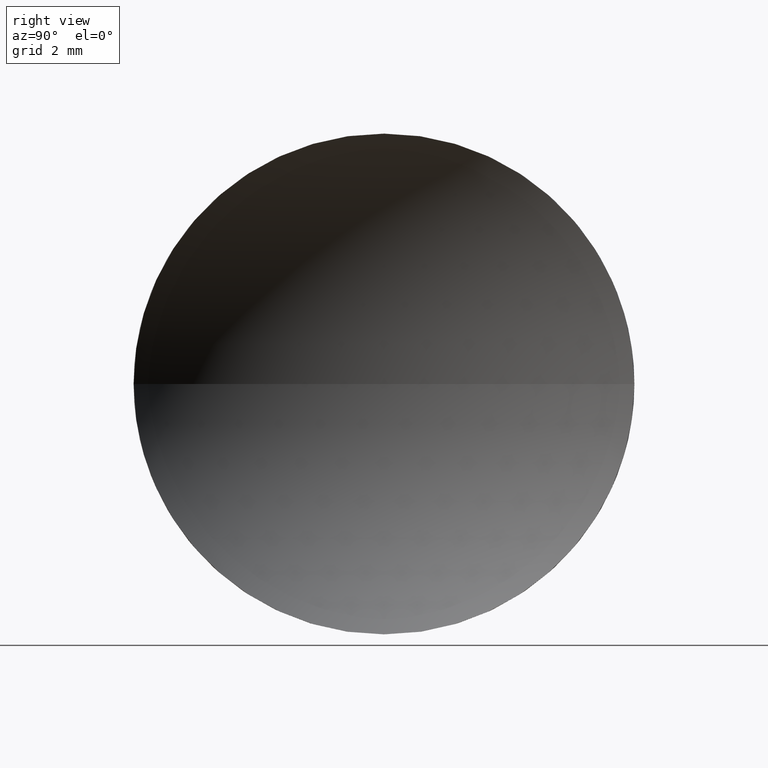
[diagram: clean part render]
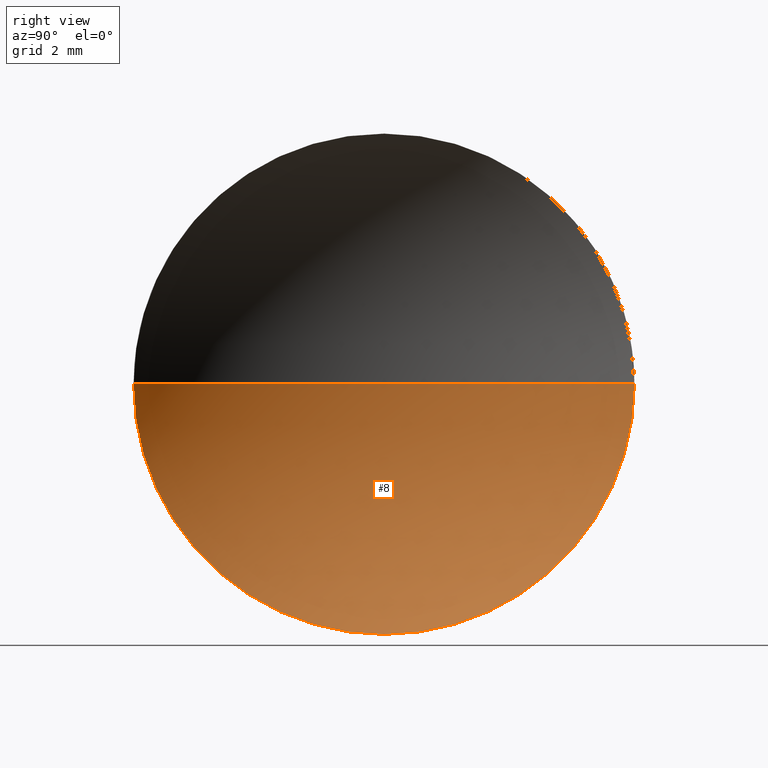
[diagram: same view with one face highlighted and labeled with its STEP entity id]
A machine part, right view. The second image highlights one B-rep face of the part: STEP entity #8.
In plain terms, the highlighted spherical surface has radius 6.88 mm.
Its self-contained STEP definition (entity closure, byte-faithful):
#5 = DIRECTION ( 'NONE',  ( 0.0000000000000000000, -1.224646799147353200E-016, 1.000000000000000000 ) ) ;
#8 = ADVANCED_FACE ( 'NONE', ( #122 ), #75, .F. ) ;
#15 = EDGE_CURVE ( 'NONE', #53, #137, #97, .T. ) ;
#22 = CARTESIAN_POINT ( 'NONE',  ( 45.01989884529392300, 21.06225218280608800, 0.0000000000000000000 ) ) ;
#23 = EDGE_LOOP ( 'NONE', ( #134, #147, #183, #178 ) ) ;
#27 = DIRECTION ( 'NONE',  ( 0.0000000000000000000, -1.000000000000000000, 0.0000000000000000000 ) ) ;
#29 = EDGE_CURVE ( 'NONE', #142, #53, #170, .T. ) ;
#34 = CIRCLE ( 'NONE', #57, 6.879999999999997200 ) ;
#38 = AXIS2_PLACEMENT_3D ( 'NONE', #105, #156, #44 ) ;
#41 = DIRECTION ( 'NONE',  ( 0.0000000000000000000, 0.0000000000000000000, 1.000000000000000000 ) ) ;
#43 = AXIS2_PLACEMENT_3D ( 'NONE', #55, #41, #27 ) ;
#44 = DIRECTION ( 'NONE',  ( 0.0000000000000000000, 0.0000000000000000000, 1.000000000000000000 ) ) ;
#46 = DIRECTION ( 'NONE',  ( -1.000000000000000000, -0.0000000000000000000, -0.0000000000000000000 ) ) ;
#53 = VERTEX_POINT ( 'NONE', #169 ) ;
#55 = CARTESIAN_POINT ( 'NONE',  ( 49.74582732549756500, 26.06225218280608400, 0.0000000000000000000 ) ) ;
#56 = CARTESIAN_POINT ( 'NONE',  ( 49.74582732549756500, 26.06225218280608400, 0.0000000000000000000 ) ) ;
#57 = AXIS2_PLACEMENT_3D ( 'NONE', #123, #172, #152 ) ;
#62 = CARTESIAN_POINT ( 'NONE',  ( 45.01989884529392300, 31.06225218280608000, 6.123233995736761400E-016 ) ) ;
#66 = AXIS2_PLACEMENT_3D ( 'NONE', #56, #5, #77 ) ;
#70 = VERTEX_POINT ( 'NONE', #79 ) ;
#71 = EDGE_CURVE ( 'NONE', #142, #70, #150, .T. ) ;
#75 = SPHERICAL_SURFACE ( 'NONE', #43, 6.879999999999993700 ) ;
#77 = DIRECTION ( 'NONE',  ( 0.0000000000000000000, -1.000000000000000000, -1.224646799147353200E-016 ) ) ;
#79 = CARTESIAN_POINT ( 'NONE',  ( 42.86582732549757000, 26.06225218280608400, 0.0000000000000000000 ) ) ;
#86 = EDGE_CURVE ( 'NONE', #137, #70, #34, .T. ) ;
#90 = DIRECTION ( 'NONE',  ( 0.0000000000000000000, 0.0000000000000000000, 1.000000000000000000 ) ) ;
#97 = CIRCLE ( 'NONE', #38, 4.999999999999997300 ) ;
#105 = CARTESIAN_POINT ( 'NONE',  ( 45.01989884529392300, 26.06225218280608000, 0.0000000000000000000 ) ) ;
#122 = FACE_OUTER_BOUND ( 'NONE', #23, .T. ) ;
#123 = CARTESIAN_POINT ( 'NONE',  ( 49.74582732549756500, 26.06225218280608400, 0.0000000000000000000 ) ) ;
#128 = AXIS2_PLACEMENT_3D ( 'NONE', #153, #46, #90 ) ;
#134 = ORIENTED_EDGE ( 'NONE', *, *, #29, .F. ) ;
#137 = VERTEX_POINT ( 'NONE', #22 ) ;
#142 = VERTEX_POINT ( 'NONE', #62 ) ;
#147 = ORIENTED_EDGE ( 'NONE', *, *, #71, .T. ) ;
#150 = CIRCLE ( 'NONE', #66, 6.879999999999993700 ) ;
#152 = DIRECTION ( 'NONE',  ( -1.000000000000000000, 0.0000000000000000000, 0.0000000000000000000 ) ) ;
#153 = CARTESIAN_POINT ( 'NONE',  ( 45.01989884529392300, 26.06225218280608000, 0.0000000000000000000 ) ) ;
#156 = DIRECTION ( 'NONE',  ( -1.000000000000000000, -0.0000000000000000000, -0.0000000000000000000 ) ) ;
#169 = CARTESIAN_POINT ( 'NONE',  ( 45.01989884529392300, 26.06225218280608000, -4.999999999999997300 ) ) ;
#170 = CIRCLE ( 'NONE', #128, 4.999999999999997300 ) ;
#172 = DIRECTION ( 'NONE',  ( 0.0000000000000000000, 0.0000000000000000000, -1.000000000000000000 ) ) ;
#178 = ORIENTED_EDGE ( 'NONE', *, *, #15, .F. ) ;
#183 = ORIENTED_EDGE ( 'NONE', *, *, #86, .F. ) ;